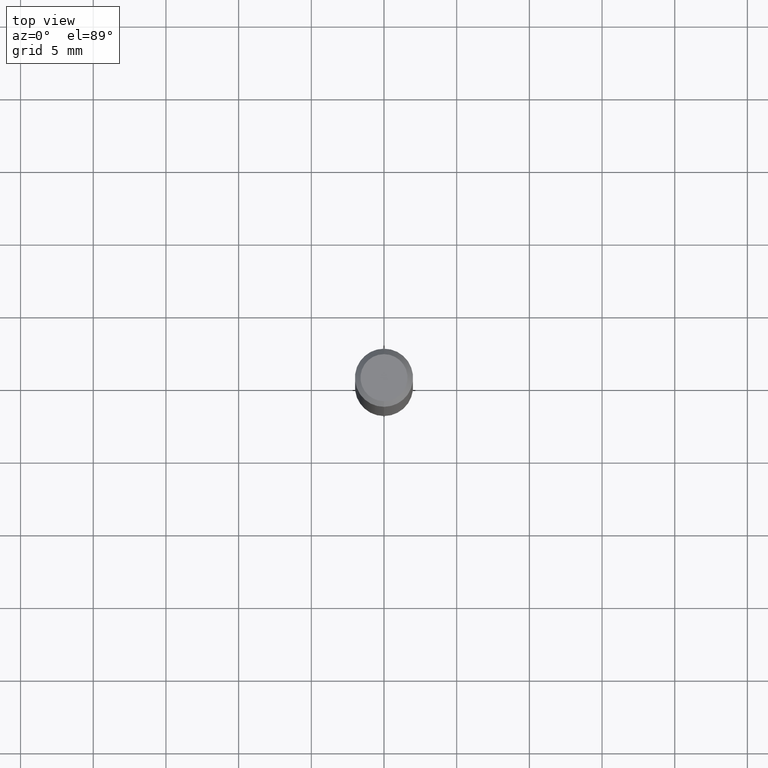
[diagram: clean part render]
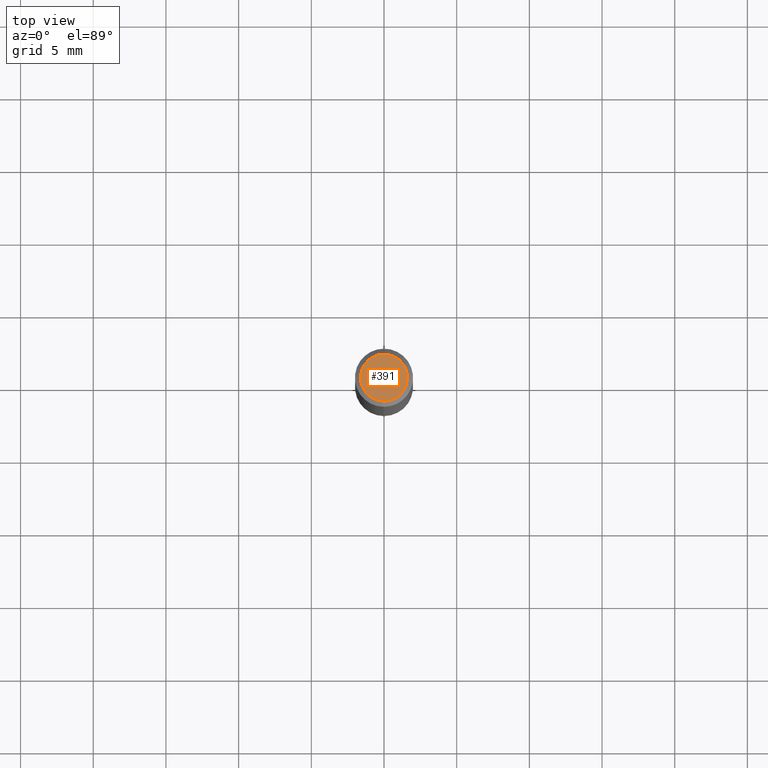
[diagram: same view with one face highlighted and labeled with its STEP entity id]
A machine part, top view. The second image highlights one B-rep face of the part: STEP entity #391.
In plain terms, the highlighted planar face has unit normal (0, -0, -1).
Its self-contained STEP definition (entity closure, byte-faithful):
#33 = DIRECTION ( 'NONE',  ( -2.445433841803367524E-29, 3.491531409827887808E-15, 1.000000000000000000 ) ) ;
#45 = CIRCLE ( 'NONE', #240, 0.06375000000000000111 ) ;
#75 = PLANE ( 'NONE',  #246 ) ;
#98 = DIRECTION ( 'NONE',  ( -2.445433841803367524E-29, 3.491531409827887808E-15, 1.000000000000000000 ) ) ;
#117 = EDGE_CURVE ( 'NONE', #278, #258, #182, .T. ) ;
#127 = AXIS2_PLACEMENT_3D ( 'NONE', #376, #33, #210 ) ;
#136 = EDGE_LOOP ( 'NONE', ( #389, #501 ) ) ;
#182 = CIRCLE ( 'NONE', #127, 0.06375000000000000111 ) ;
#210 = DIRECTION ( 'NONE',  ( -6.982962677686264344E-15, -1.000000000000000000, 3.491531409827887019E-15 ) ) ;
#240 = AXIS2_PLACEMENT_3D ( 'NONE', #422, #98, #380 ) ;
#243 = DIRECTION ( 'NONE',  ( 2.445433841803367243E-29, -3.491531409827887808E-15, -1.000000000000000000 ) ) ;
#246 = AXIS2_PLACEMENT_3D ( 'NONE', #280, #243, #395 ) ;
#258 = VERTEX_POINT ( 'NONE', #316 ) ;
#278 = VERTEX_POINT ( 'NONE', #430 ) ;
#279 = EDGE_CURVE ( 'NONE', #258, #278, #45, .T. ) ;
#280 = CARTESIAN_POINT ( 'NONE',  ( 4.451638707024993845E-16, 0.06375000000000000111, -2.657199956650864674E-16 ) ) ;
#316 = CARTESIAN_POINT ( 'NONE',  ( 4.975360907851465623E-16, 0.06375000000000000111, -3.088548639536449766E-16 ) ) ;
#376 = CARTESIAN_POINT ( 'NONE',  ( 2.109669333491442099E-45, -3.012134949765825103E-31, -8.626973657711720330E-17 ) ) ;
#380 = DIRECTION ( 'NONE',  ( -6.982962677686264344E-15, -1.000000000000000000, 3.491531409827887019E-15 ) ) ;
#389 = ORIENTED_EDGE ( 'NONE', *, *, #279, .T. ) ;
#391 = ADVANCED_FACE ( 'NONE', ( #510 ), #75, .F. ) ;
#395 = DIRECTION ( 'NONE',  ( 6.982962677686265922E-15, 1.000000000000000000, -3.491531409827887808E-15 ) ) ;
#422 = CARTESIAN_POINT ( 'NONE',  ( 2.109669333491442099E-45, -3.012134949765825103E-31, -8.626973657711720330E-17 ) ) ;
#430 = CARTESIAN_POINT ( 'NONE',  ( -4.888104823412213911E-16, -0.06375000000000000111, 1.363153907994106193E-16 ) ) ;
#501 = ORIENTED_EDGE ( 'NONE', *, *, #117, .T. ) ;
#510 = FACE_OUTER_BOUND ( 'NONE', #136, .T. ) ;